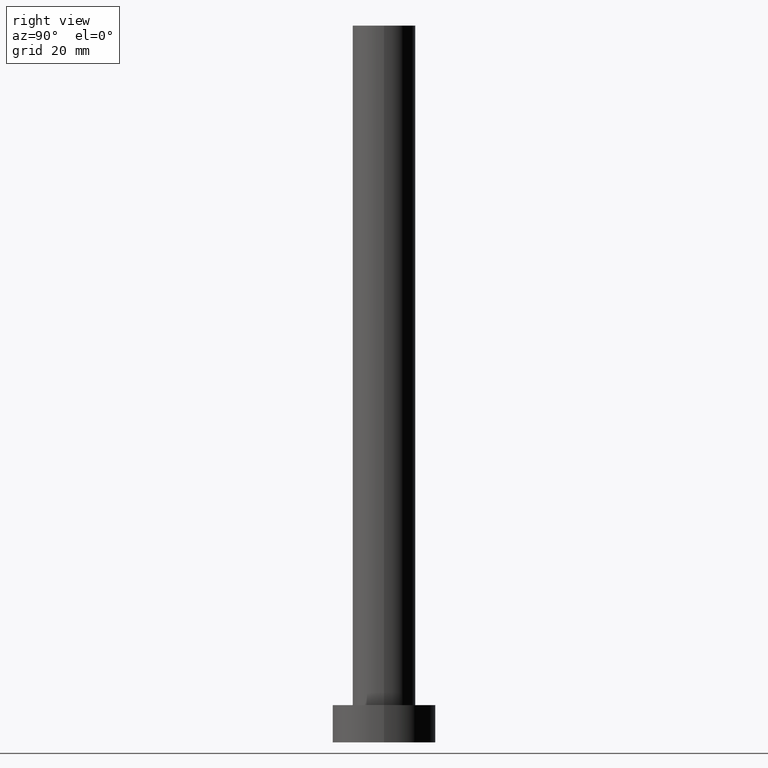
[diagram: clean part render]
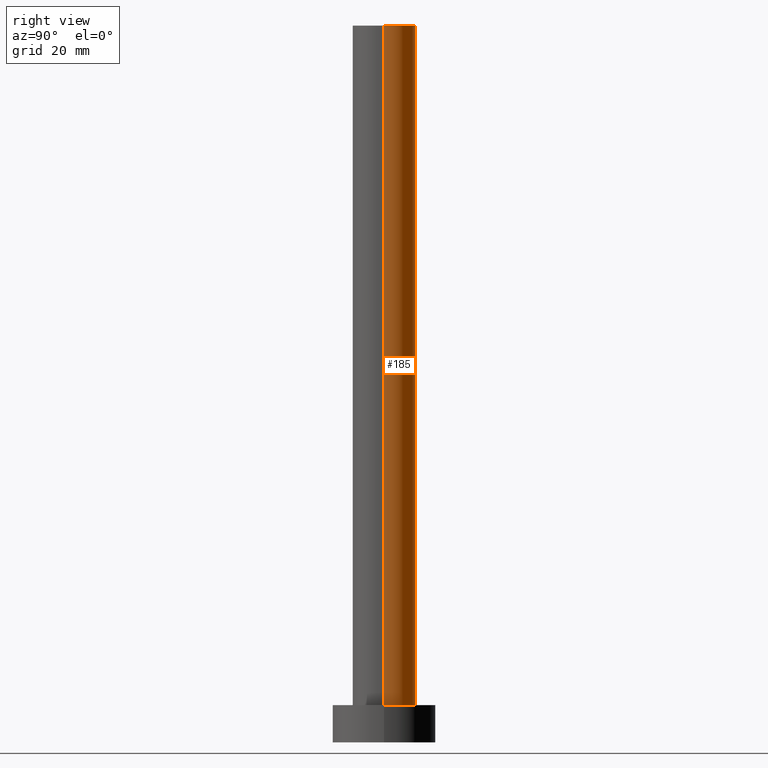
[diagram: same view with one face highlighted and labeled with its STEP entity id]
A machine part, right view. The second image highlights one B-rep face of the part: STEP entity #185.
In plain terms, the highlighted cylindrical surface (edge-blend (fillet) strip) has radius 5.5 mm, axis along (-0, -0, -1).
Its self-contained STEP definition (entity closure, byte-faithful):
#3 = CARTESIAN_POINT ( 'NONE',  ( -5.500000000000000000, 0.000000000000000000, 125.0000000000000000 ) ) ;
#19 = AXIS2_PLACEMENT_3D ( 'NONE', #173, #71, #238 ) ;
#22 = LINE ( 'NONE', #3, #42 ) ;
#23 = DIRECTION ( 'NONE',  ( -0.000000000000000000, -0.000000000000000000, -1.000000000000000000 ) ) ;
#30 = EDGE_CURVE ( 'NONE', #39, #166, #22, .T. ) ;
#33 = CIRCLE ( 'NONE', #150, 5.500000000000000000 ) ;
#37 = ORIENTED_EDGE ( 'NONE', *, *, #219, .F. ) ;
#39 = VERTEX_POINT ( 'NONE', #245 ) ;
#41 = EDGE_CURVE ( 'NONE', #67, #166, #69, .T. ) ;
#42 = VECTOR ( 'NONE', #77, 1000.000000000000000 ) ;
#52 = CYLINDRICAL_SURFACE ( 'NONE', #19, 5.500000000000000000 ) ;
#61 = DIRECTION ( 'NONE',  ( 0.000000000000000000, 0.000000000000000000, 1.000000000000000000 ) ) ;
#67 = VERTEX_POINT ( 'NONE', #116 ) ;
#69 = CIRCLE ( 'NONE', #192, 5.500000000000000000 ) ;
#71 = DIRECTION ( 'NONE',  ( -0.000000000000000000, -0.000000000000000000, -1.000000000000000000 ) ) ;
#77 = DIRECTION ( 'NONE',  ( -0.000000000000000000, -0.000000000000000000, -1.000000000000000000 ) ) ;
#83 = EDGE_CURVE ( 'NONE', #124, #67, #154, .T. ) ;
#90 = FACE_OUTER_BOUND ( 'NONE', #135, .T. ) ;
#92 = VECTOR ( 'NONE', #23, 1000.000000000000000 ) ;
#116 = CARTESIAN_POINT ( 'NONE',  ( 5.500000000000000000, 6.735557395310442023E-16, 6.500000000000000000 ) ) ;
#124 = VERTEX_POINT ( 'NONE', #139 ) ;
#125 = ORIENTED_EDGE ( 'NONE', *, *, #41, .T. ) ;
#135 = EDGE_LOOP ( 'NONE', ( #37, #143, #125, #195 ) ) ;
#136 = DIRECTION ( 'NONE',  ( 1.000000000000000000, 0.000000000000000000, 0.000000000000000000 ) ) ;
#139 = CARTESIAN_POINT ( 'NONE',  ( 5.500000000000000000, 6.735557395310442023E-16, 125.0000000000000000 ) ) ;
#143 = ORIENTED_EDGE ( 'NONE', *, *, #83, .T. ) ;
#150 = AXIS2_PLACEMENT_3D ( 'NONE', #178, #151, #136 ) ;
#151 = DIRECTION ( 'NONE',  ( 0.000000000000000000, 0.000000000000000000, 1.000000000000000000 ) ) ;
#154 = LINE ( 'NONE', #207, #92 ) ;
#166 = VERTEX_POINT ( 'NONE', #196 ) ;
#173 = CARTESIAN_POINT ( 'NONE',  ( 0.000000000000000000, 0.000000000000000000, 125.0000000000000000 ) ) ;
#178 = CARTESIAN_POINT ( 'NONE',  ( 0.000000000000000000, 0.000000000000000000, 125.0000000000000000 ) ) ;
#179 = CARTESIAN_POINT ( 'NONE',  ( 0.000000000000000000, 0.000000000000000000, 6.500000000000000000 ) ) ;
#182 = DIRECTION ( 'NONE',  ( 1.000000000000000000, 0.000000000000000000, 0.000000000000000000 ) ) ;
#185 = ADVANCED_FACE ( 'NONE', ( #90 ), #52, .T. ) ;
#192 = AXIS2_PLACEMENT_3D ( 'NONE', #179, #61, #182 ) ;
#195 = ORIENTED_EDGE ( 'NONE', *, *, #30, .F. ) ;
#196 = CARTESIAN_POINT ( 'NONE',  ( -5.500000000000000000, 0.000000000000000000, 6.500000000000000000 ) ) ;
#207 = CARTESIAN_POINT ( 'NONE',  ( 5.500000000000000000, 6.735557395310442023E-16, 125.0000000000000000 ) ) ;
#219 = EDGE_CURVE ( 'NONE', #124, #39, #33, .T. ) ;
#238 = DIRECTION ( 'NONE',  ( -1.000000000000000000, 0.000000000000000000, 0.000000000000000000 ) ) ;
#245 = CARTESIAN_POINT ( 'NONE',  ( -5.500000000000000000, 0.000000000000000000, 125.0000000000000000 ) ) ;